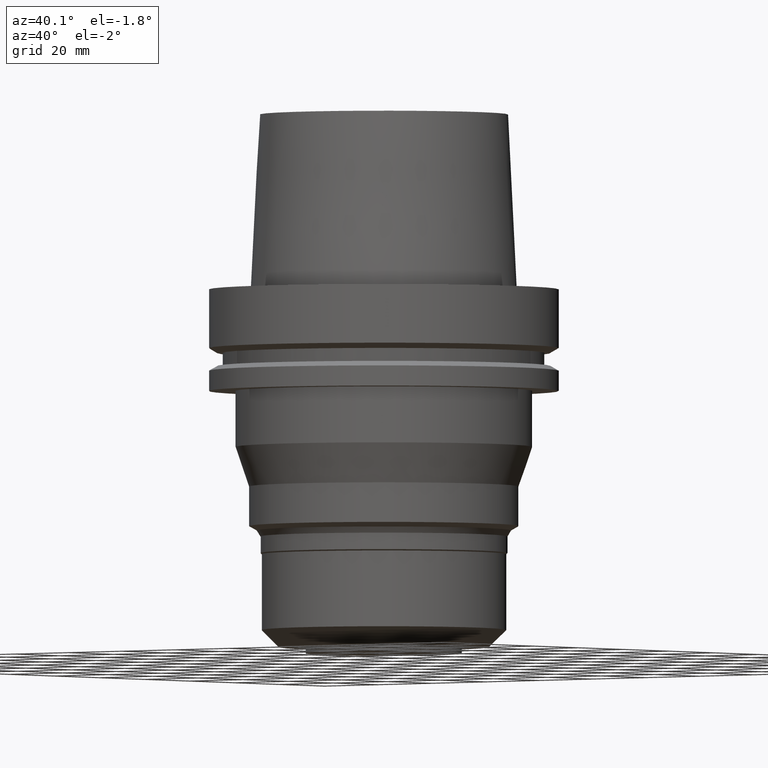
[diagram: clean part render]
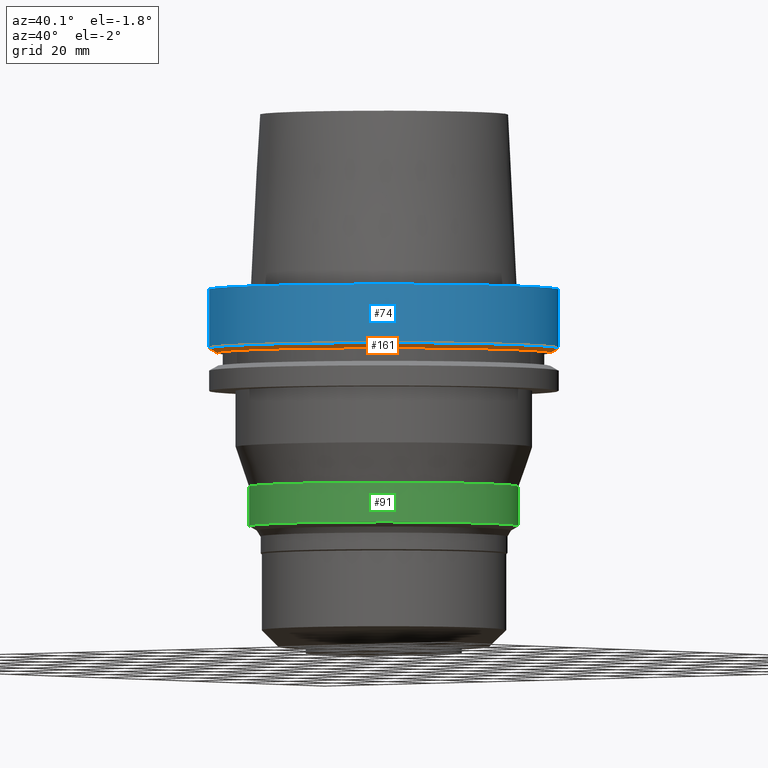
[diagram: same view with three faces highlighted in distinct colors, each labeled with its STEP entity id]
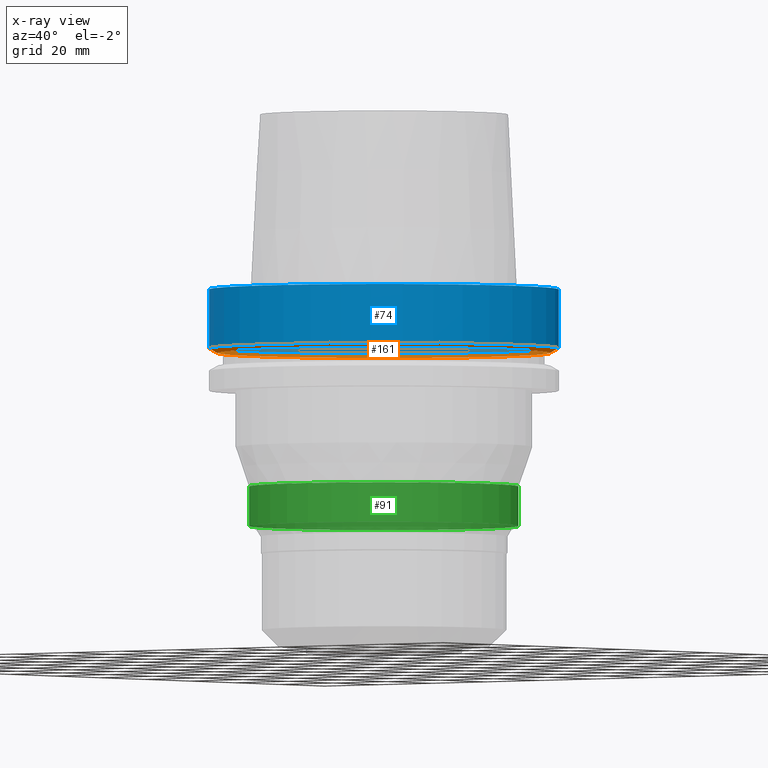
[diagram: x-ray of the same camera — body ghosted, the three highlighted faces saturated]
A machine part, auxiliary view with three faces highlighted in distinct colors.
The next image is the same camera in x-ray (body ghosted, the three faces saturated) — at least one of them is partly hidden behind the body in this view.
Their STEP definitions:

[orange] entity #161 — the highlighted conical surface has half-angle 60 deg.
#96=EDGE_CURVE('Unnamed[1]',#245,#245,#246,.T.);
#161=ADVANCED_FACE('Unnamed[1]',(#344,#345),#346,.T.);
#163=EDGE_CURVE('Unnamed[1]',#348,#348,#349,.T.);
#245=VERTEX_POINT('',#443);
#246=CIRCLE('',#444,47.62259526);
#344=FACE_BOUND('',#567,.T.);
#345=FACE_BOUND('',#568,.T.);
#346=CONICAL_SURFACE('',#569,48.81129763,1.04719755328238);
#348=VERTEX_POINT('',#572);
#349=CIRCLE('',#573,50.0);
#443=CARTESIAN_POINT('',(1.10983616172729E-015,47.62259526,-18.125));
#444=AXIS2_PLACEMENT_3D('',#668,#669,#670);
#567=EDGE_LOOP('',(#776));
#568=EDGE_LOOP('',(#777));
#569=AXIS2_PLACEMENT_3D('',#778,#779,#780);
#572=CARTESIAN_POINT('',(1.0257889421431E-015,50.0,-16.75240474));
#573=AXIS2_PLACEMENT_3D('',#781,#782,#783);
#668=CARTESIAN_POINT('',(1.10983616172729E-015,2.21967232345458E-015,-18.125));
#669=DIRECTION('',(6.12323399573676E-017,1.22464679914735E-016,-1.0));
#670=DIRECTION('',(-1.23259516440783E-032,1.0,1.22464679914735E-016));
#776=ORIENTED_EDGE('',*,*,#96,.F.);
#777=ORIENTED_EDGE('',*,*,#163,.T.);
#778=CARTESIAN_POINT('',(1.06781255193519E-015,2.13562510387038E-015,-17.43870237));
#779=DIRECTION('',(-6.12323399573677E-017,-1.22464679914735E-016,1.0));
#780=DIRECTION('',(-1.23259516440783E-032,1.0,1.22464679914735E-016));
#781=CARTESIAN_POINT('',(1.0257889421431E-015,2.05157788428619E-015,-16.75240474));
#782=DIRECTION('',(6.12323399573677E-017,1.22464679914735E-016,-1.0));
#783=DIRECTION('',(-1.23259516440783E-032,1.0,1.22464679914735E-016));

[blue] entity #74 — the highlighted cylindrical surface (bore or boss wall) has radius 50 mm, axis along (0, 0, -1).
#74=ADVANCED_FACE('Unnamed[1]',(#208,#209),#210,.T.);
#145=EDGE_CURVE('Unnamed[1]',#320,#320,#321,.T.);
#163=EDGE_CURVE('Unnamed[1]',#348,#348,#349,.T.);
#208=FACE_BOUND('',#398,.T.);
#209=FACE_BOUND('',#399,.T.);
#210=CYLINDRICAL_SURFACE('',#400,50.0);
#320=VERTEX_POINT('',#536);
#321=CIRCLE('',#537,50.0);
#348=VERTEX_POINT('',#572);
#349=CIRCLE('',#573,50.0);
#398=EDGE_LOOP('',(#624));
#399=EDGE_LOOP('',(#625));
#400=AXIS2_PLACEMENT_3D('',#626,#627,#628);
#536=CARTESIAN_POINT('',(-1.81547968506605E-031,50.0,-9.76766004263236E-016));
#537=AXIS2_PLACEMENT_3D('',#751,#752,#753);
#572=CARTESIAN_POINT('',(1.0257889421431E-015,50.0,-16.75240474));
#573=AXIS2_PLACEMENT_3D('',#781,#782,#783);
#624=ORIENTED_EDGE('',*,*,#163,.F.);
#625=ORIENTED_EDGE('',*,*,#145,.T.);
#626=CARTESIAN_POINT('',(5.12894471071548E-016,1.0257889421431E-015,-8.37620236999999));
#627=DIRECTION('',(6.12323399573677E-017,1.22464679914735E-016,-1.0));
#628=DIRECTION('',(-1.23259516440783E-032,1.0,1.22464679914735E-016));
#751=CARTESIAN_POINT('',(0.0,0.0,0.0));
#752=DIRECTION('',(6.12323399573677E-017,1.22464679914735E-016,-1.0));
#753=DIRECTION('',(-1.23259516440783E-032,1.0,1.22464679914735E-016));
#781=CARTESIAN_POINT('',(1.0257889421431E-015,2.05157788428619E-015,-16.75240474));
#782=DIRECTION('',(6.12323399573677E-017,1.22464679914735E-016,-1.0));
#783=DIRECTION('',(-1.23259516440783E-032,1.0,1.22464679914735E-016));

[green] entity #91 — the highlighted cylindrical surface (bore or boss wall) has radius 38.5 mm, axis along (0, 0, -1).
#91=ADVANCED_FACE('Unnamed[1]',(#236,#237),#238,.T.);
#149=EDGE_CURVE('Unnamed[1]',#326,#326,#327,.T.);
#156=EDGE_CURVE('Unnamed[1]',#337,#337,#338,.T.);
#236=FACE_BOUND('',#432,.T.);
#237=FACE_BOUND('',#433,.T.);
#238=CYLINDRICAL_SURFACE('',#434,38.5000000000002);
#326=VERTEX_POINT('',#544);
#327=CIRCLE('',#545,38.5000000000001);
#337=VERTEX_POINT('',#558);
#338=CIRCLE('',#559,38.5000000000003);
#432=EDGE_LOOP('',(#657));
#433=EDGE_LOOP('',(#658));
#434=AXIS2_PLACEMENT_3D('',#659,#660,#661);
#544=CARTESIAN_POINT('',(3.44738073959978E-015,38.5000000000001,-56.2999999999997));
#545=AXIS2_PLACEMENT_3D('',#757,#758,#759);
#558=CARTESIAN_POINT('',(4.1398818310461E-015,38.5000000000003,-67.6094010767585));
#559=AXIS2_PLACEMENT_3D('',#769,#770,#771);
#657=ORIENTED_EDGE('',*,*,#156,.F.);
#658=ORIENTED_EDGE('',*,*,#149,.T.);
#659=CARTESIAN_POINT('',(3.79363128532294E-015,7.58726257064587E-015,-61.9547005383791));
#660=DIRECTION('',(6.12323399573677E-017,1.22464679914735E-016,-1.0));
#661=DIRECTION('',(-1.23259516440783E-032,1.0,1.22464679914735E-016));
#757=CARTESIAN_POINT('',(3.44738073959978E-015,6.89476147919956E-015,-56.2999999999997));
#758=DIRECTION('',(6.12323399573677E-017,1.22464679914735E-016,-1.0));
#759=DIRECTION('',(-1.23259516440783E-032,1.0,1.22464679914735E-016));
#769=CARTESIAN_POINT('',(4.1398818310461E-015,8.27976366209219E-015,-67.6094010767585));
#770=DIRECTION('',(6.12323399573677E-017,1.22464679914735E-016,-1.0));
#771=DIRECTION('',(-1.23259516440783E-032,1.0,1.22464679914735E-016));